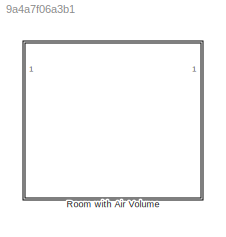
MODEL slx_9a4a7f06a3b1
KIND library
CONFIG AbsTol = auto
CONFIG EnableMultiTasking = off
CONFIG FixedStep = auto
CONFIG MaxStep = auto
CONFIG MinStep = auto
CONFIG RelTol = 1e-3
CONFIG SampleTimeConstraint = Unconstrained
CONFIG SolverName = VariableStepAuto
CONFIG StartTime = 0.0
CONFIG StopTime = 10.0
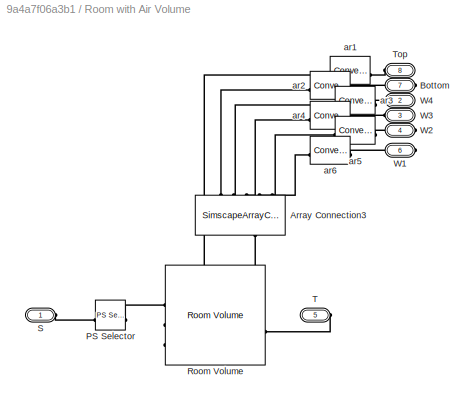
BLOCK [SubSystem] Room with Air Volume
  PortSchema = {"entries":[{"content":{"sides":[{"content":{"connectorIds":["LConn1","LConn2"]},"type":"ConnectorPlacement.EquallySpacedRectSide","uuid":"8440f6ae-3089-4f14-af97-f7a7d9c670fb"},{"content":{"connectorIds":["RConn1","RConn2"],"side":"RIGHT"},"type":"ConnectorPlacement.EquallySpacedRectSide","uuid":"df84a625-bd6d-46a4-b71c-d411d28f8df6"},{"content":{"connectorIds":["LConn3","LConn4"],"side":"TOP"},"...<+441ch>
BLOCK [SimscapeArrayConnection] Room with Air Volume/Array Connection3
  Domain = foundation.thermal.thermal
  NameLocation = left
  NumScalarElements = 5
BLOCK [PMIOPort] Room with Air Volume/Bottom
  NameLocation = right
  Port = 7
  Side = Right
BLOCK [Reference] Room with Air Volume/PS Selector  REF=fl_lib/Physical Signals/Nonlinear Operators/PS Selector
  SourceBlock = fl_lib/Physical Signals/Nonlinear Operators/PS Selector
  SourceType = PS Selector
BLOCK [Reference] Room with Air Volume/Room Volume  REF=RoomVolume_lib/Room Volume
  SourceBlock = RoomVolume_lib/Room Volume
  SourceType = Room Volume
BLOCK [PMIOPort] Room with Air Volume/S
  NameLocation = left
  Side = Left
BLOCK [PMIOPort] Room with Air Volume/T
  NameLocation = right
  Port = 5
  Side = Right
BLOCK [PMIOPort] Room with Air Volume/Top
  NameLocation = right
  Port = 8
  Side = Left
BLOCK [PMIOPort] Room with Air Volume/W1
  NameLocation = right
  Port = 6
  Side = Right
BLOCK [PMIOPort] Room with Air Volume/W2
  NameLocation = right
  Port = 4
  Side = Right
BLOCK [PMIOPort] Room with Air Volume/W3
  NameLocation = right
  Port = 3
  Side = Left
BLOCK [PMIOPort] Room with Air Volume/W4
  NameLocation = right
  Port = 2
  Side = Left
BLOCK [Reference] Room with Air Volume/ar1  REF=fl_lib/Thermal/Thermal Elements/Convective Heat
Transfer
  NameLocation = top
  SourceBlock = fl_lib/Thermal/Thermal Elements/Convective Heat\nTransfer
  SourceType = Convective Heat\nTransfer
BLOCK [Reference] Room with Air Volume/ar2  REF=fl_lib/Thermal/Thermal Elements/Convective Heat
Transfer
  NameLocation = top
  SourceBlock = fl_lib/Thermal/Thermal Elements/Convective Heat\nTransfer
  SourceType = Convective Heat\nTransfer
BLOCK [Reference] Room with Air Volume/ar3  REF=fl_lib/Thermal/Thermal Elements/Convective Heat
Transfer
  NameLocation = top
  SourceBlock = fl_lib/Thermal/Thermal Elements/Convective Heat\nTransfer
  SourceType = Convective Heat\nTransfer
BLOCK [Reference] Room with Air Volume/ar4  REF=fl_lib/Thermal/Thermal Elements/Convective Heat
Transfer
  NameLocation = top
  SourceBlock = fl_lib/Thermal/Thermal Elements/Convective Heat\nTransfer
  SourceType = Convective Heat\nTransfer
BLOCK [Reference] Room with Air Volume/ar5  REF=fl_lib/Thermal/Thermal Elements/Convective Heat
Transfer
  NameLocation = top
  SourceBlock = fl_lib/Thermal/Thermal Elements/Convective Heat\nTransfer
  SourceType = Convective Heat\nTransfer
BLOCK [Reference] Room with Air Volume/ar6  REF=fl_lib/Thermal/Thermal Elements/Convective Heat
Transfer
  NameLocation = top
  SourceBlock = fl_lib/Thermal/Thermal Elements/Convective Heat\nTransfer
  SourceType = Convective Heat\nTransfer
PLINE Room with Air Volume/Array Connection3:LConn1 -- Room with Air Volume/ar2:LConn1
PLINE Room with Air Volume/Array Connection3:LConn2 -- Room with Air Volume/ar3:LConn1
PLINE Room with Air Volume/Array Connection3:LConn3 -- Room with Air Volume/ar4:LConn1
PLINE Room with Air Volume/Array Connection3:LConn4 -- Room with Air Volume/ar5:LConn1
PLINE Room with Air Volume/Array Connection3:LConn5 -- Room with Air Volume/ar6:LConn1
PLINE Room with Air Volume/Array Connection3:RConn1 -- Room with Air Volume/Room Volume:LConn3
PLINE Room with Air Volume/Bottom:RConn1 -- Room with Air Volume/ar2:RConn1
PLINE Room with Air Volume/PS Selector:LConn1 -- Room with Air Volume/S:RConn1
PLINE Room with Air Volume/PS Selector:RConn1 -- Room with Air Volume/Room Volume:LConn1
PLINE Room with Air Volume/Room Volume:LConn2 -- Room with Air Volume/ar1:LConn1
PLINE Room with Air Volume/Room Volume:RConn1 -- Room with Air Volume/T:RConn1
PLINE Room with Air Volume/Top:RConn1 -- Room with Air Volume/ar1:RConn1
PLINE Room with Air Volume/W1:RConn1 -- Room with Air Volume/ar6:RConn1
PLINE Room with Air Volume/W2:RConn1 -- Room with Air Volume/ar5:RConn1
PLINE Room with Air Volume/W3:RConn1 -- Room with Air Volume/ar4:RConn1
PLINE Room with Air Volume/W4:RConn1 -- Room with Air Volume/ar3:RConn1
